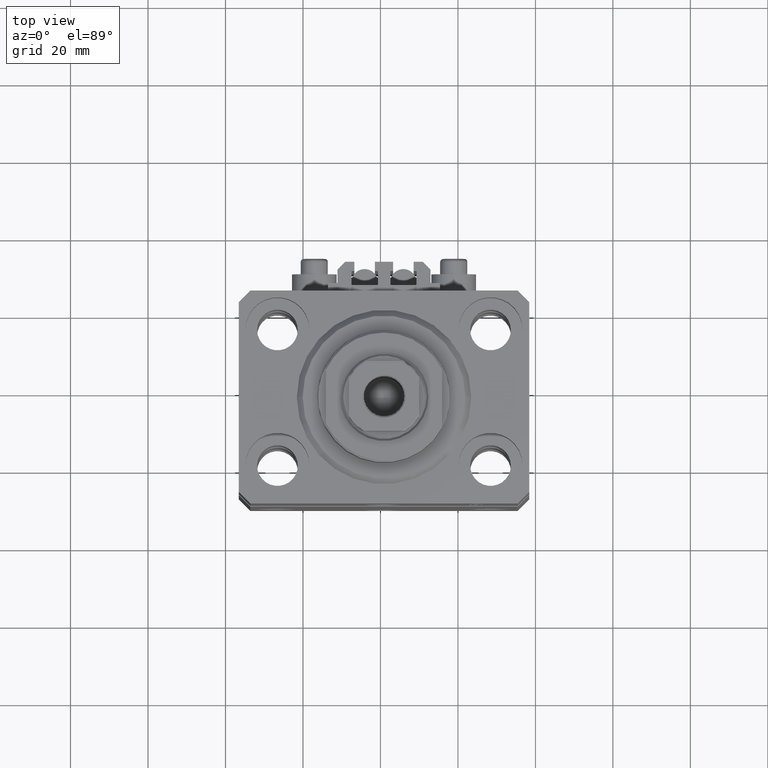
[diagram: clean part render]
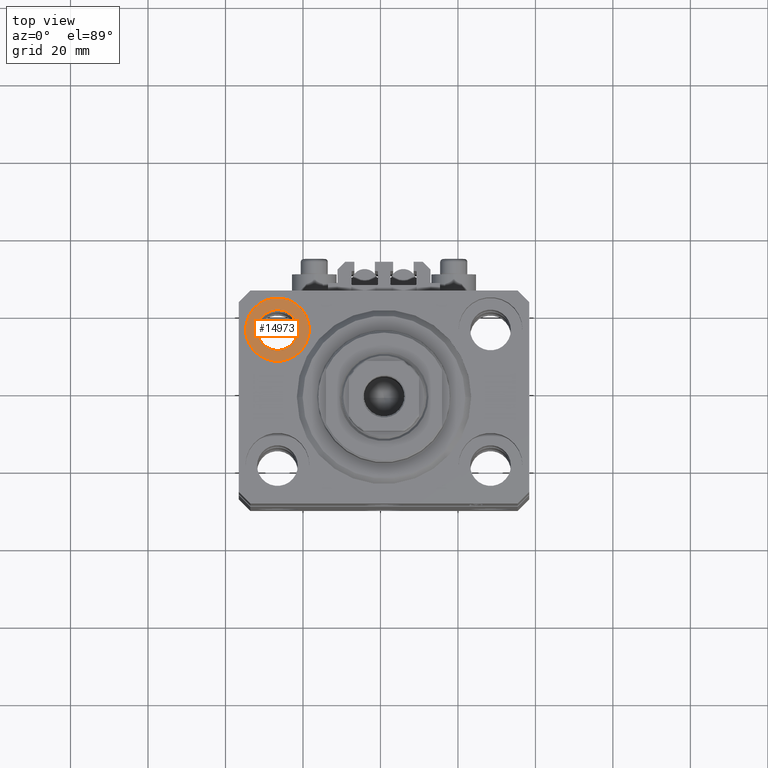
[diagram: same view with one face highlighted and labeled with its STEP entity id]
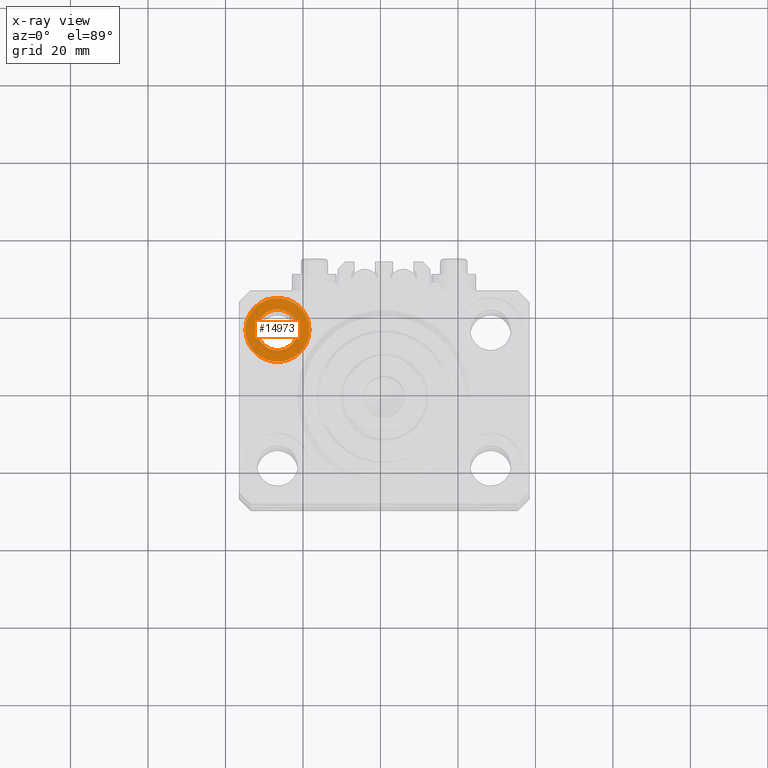
[diagram: x-ray of the same camera — body ghosted, the highlighted face saturated]
A machine part, top view. The second image highlights one B-rep face of the part: STEP entity #14973.
The next image is the same camera in x-ray: the body ghosted, the highlighted face saturated — about 0% of this face is hidden behind the body in this view.
In plain terms, the highlighted planar face has unit normal (0, 0, 1).
Its self-contained STEP definition (entity closure, byte-faithful):
#533 = DIRECTION ( 'NONE',  ( 0.000000000000000000, 0.000000000000000000, 1.000000000000000000 ) ) ;
#1634 = DIRECTION ( 'NONE',  ( 1.000000000000000000, 0.000000000000000000, 0.000000000000000000 ) ) ;
#4425 = DIRECTION ( 'NONE',  ( 1.000000000000000000, 0.000000000000000000, -0.000000000000000000 ) ) ;
#5060 = VERTEX_POINT ( 'NONE', #42886 ) ;
#5152 = CARTESIAN_POINT ( 'NONE',  ( -27.50000000000000355, 17.50000000000000000, -11.00000000000000000 ) ) ;
#5203 = CARTESIAN_POINT ( 'NONE',  ( -27.50000000000000355, 17.50000000000000000, -11.00000000000000000 ) ) ;
#6522 = EDGE_CURVE ( 'NONE', #31123, #20751, #41495, .T. ) ;
#7169 = EDGE_LOOP ( 'NONE', ( #37526, #46732 ) ) ;
#7966 = CARTESIAN_POINT ( 'NONE',  ( -32.75000000000000000, 17.50000000000000000, -11.00000000000000000 ) ) ;
#7969 = EDGE_CURVE ( 'NONE', #20751, #31123, #31446, .T. ) ;
#8196 = AXIS2_PLACEMENT_3D ( 'NONE', #30749, #533, #4425 ) ;
#8284 = ORIENTED_EDGE ( 'NONE', *, *, #18480, .T. ) ;
#12254 = CARTESIAN_POINT ( 'NONE',  ( -27.50000000000000355, 17.50000000000000000, -11.00000000000000000 ) ) ;
#12759 = AXIS2_PLACEMENT_3D ( 'NONE', #5152, #20035, #34893 ) ;
#14035 = CIRCLE ( 'NONE', #45917, 8.250000000000000000 ) ;
#14973 = ADVANCED_FACE ( 'NONE', ( #45345, #41464 ), #37816, .T. ) ;
#15670 = EDGE_LOOP ( 'NONE', ( #8284, #22435 ) ) ;
#16134 = CIRCLE ( 'NONE', #33250, 8.250000000000000000 ) ;
#18166 = AXIS2_PLACEMENT_3D ( 'NONE', #5203, #45642, #19121 ) ;
#18480 = EDGE_CURVE ( 'NONE', #24230, #5060, #16134, .T. ) ;
#19121 = DIRECTION ( 'NONE',  ( 1.000000000000000000, 0.000000000000000000, 0.000000000000000000 ) ) ;
#20035 = DIRECTION ( 'NONE',  ( 0.000000000000000000, 0.000000000000000000, 1.000000000000000000 ) ) ;
#20658 = CARTESIAN_POINT ( 'NONE',  ( -27.50000000000000355, 17.50000000000000000, -11.00000000000000000 ) ) ;
#20751 = VERTEX_POINT ( 'NONE', #22344 ) ;
#21139 = DIRECTION ( 'NONE',  ( 0.000000000000000000, 0.000000000000000000, 1.000000000000000000 ) ) ;
#22344 = CARTESIAN_POINT ( 'NONE',  ( -22.25000000000000355, 17.50000000000000000, -11.00000000000000000 ) ) ;
#22435 = ORIENTED_EDGE ( 'NONE', *, *, #43439, .T. ) ;
#23315 = CARTESIAN_POINT ( 'NONE',  ( -19.25000000000000355, 17.50000000000000000, -11.00000000000000000 ) ) ;
#24230 = VERTEX_POINT ( 'NONE', #23315 ) ;
#30749 = CARTESIAN_POINT ( 'NONE',  ( -27.50000000000000355, 17.50000000000000000, -11.00000000000000000 ) ) ;
#31123 = VERTEX_POINT ( 'NONE', #7966 ) ;
#31446 = CIRCLE ( 'NONE', #12759, 5.250000000000000888 ) ;
#33250 = AXIS2_PLACEMENT_3D ( 'NONE', #12254, #37611, #38100 ) ;
#34893 = DIRECTION ( 'NONE',  ( 1.000000000000000000, 0.000000000000000000, 0.000000000000000000 ) ) ;
#37526 = ORIENTED_EDGE ( 'NONE', *, *, #7969, .F. ) ;
#37611 = DIRECTION ( 'NONE',  ( 0.000000000000000000, 0.000000000000000000, 1.000000000000000000 ) ) ;
#37816 = PLANE ( 'NONE',  #8196 ) ;
#38100 = DIRECTION ( 'NONE',  ( 1.000000000000000000, 0.000000000000000000, 0.000000000000000000 ) ) ;
#41464 = FACE_OUTER_BOUND ( 'NONE', #15670, .T. ) ;
#41495 = CIRCLE ( 'NONE', #18166, 5.250000000000000888 ) ;
#42886 = CARTESIAN_POINT ( 'NONE',  ( -35.75000000000000711, 17.50000000000000000, -11.00000000000000000 ) ) ;
#43439 = EDGE_CURVE ( 'NONE', #5060, #24230, #14035, .T. ) ;
#45345 = FACE_BOUND ( 'NONE', #7169, .T. ) ;
#45642 = DIRECTION ( 'NONE',  ( 0.000000000000000000, 0.000000000000000000, 1.000000000000000000 ) ) ;
#45917 = AXIS2_PLACEMENT_3D ( 'NONE', #20658, #21139, #1634 ) ;
#46732 = ORIENTED_EDGE ( 'NONE', *, *, #6522, .F. ) ;